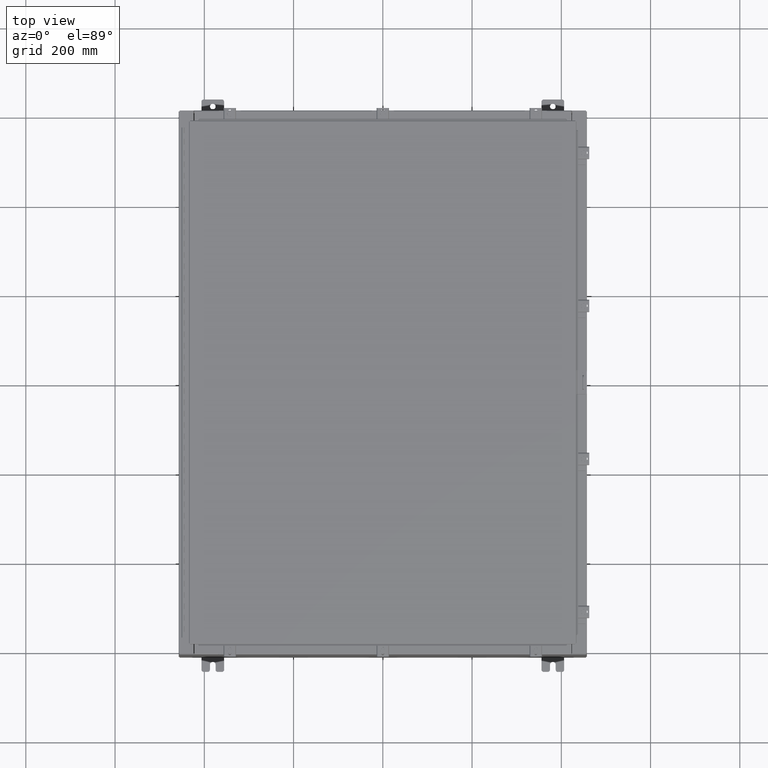
[diagram: clean part render]
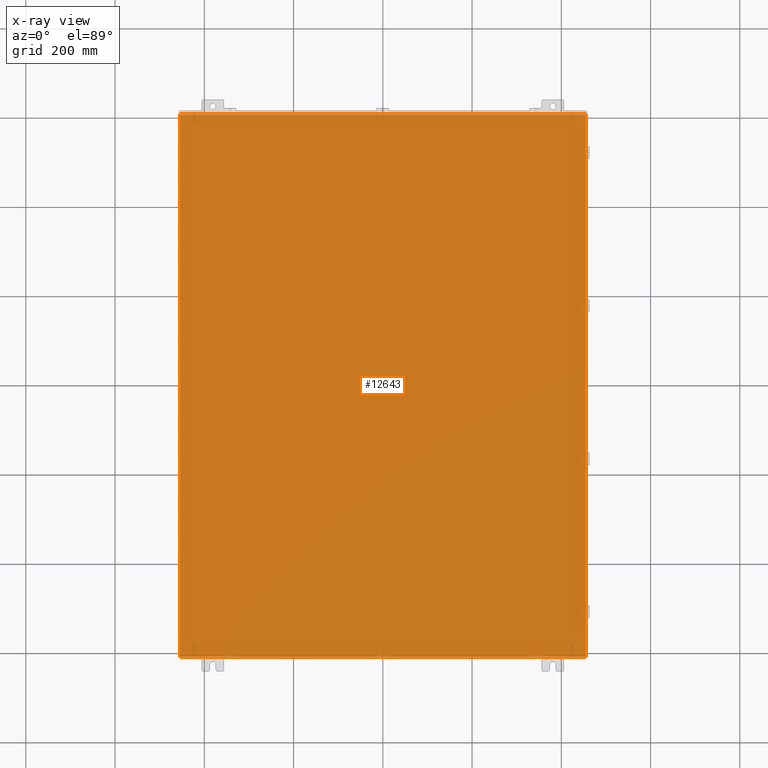
[diagram: x-ray — body ghosted, one internal face saturated and labeled with its STEP entity id]
A machine part, top view, then the same camera in x-ray: the body is ghosted and one INTERNAL B-rep face — a face not visible from any outside direction — is saturated and labeled: STEP entity #12643.
In plain terms, the highlighted planar face has unit normal (0, 0, -1).
Its self-contained STEP definition (entity closure, byte-faithful):
#303 = AXIS2_PLACEMENT_3D ( 'NONE', #30438, #22247, #51292 ) ;
#1031 = VECTOR ( 'NONE', #21137, 39.37007874015748100 ) ;
#3182 = CARTESIAN_POINT ( 'NONE',  ( -17.91230000000000500, -23.92529999999998900, 4.481938114605432000E-017 ) ) ;
#4646 = VECTOR ( 'NONE', #20668, 39.37007874015748100 ) ;
#5273 = VERTEX_POINT ( 'NONE', #34011 ) ;
#11595 = EDGE_CURVE ( 'NONE', #12930, #44428, #23324, .T. ) ;
#12555 = CARTESIAN_POINT ( 'NONE',  ( -17.91230000000000500, 23.92529999999998900, 4.481938114605432000E-017 ) ) ;
#12643 = ADVANCED_FACE ( 'NONE', ( #41400 ), #17986, .F. ) ;
#12837 = CARTESIAN_POINT ( 'NONE',  ( -18.00000000000000400, 23.92530000000000000, 0.0000000000000000000 ) ) ;
#12930 = VERTEX_POINT ( 'NONE', #15570 ) ;
#15570 = CARTESIAN_POINT ( 'NONE',  ( 17.91229999999999500, 23.92529999999998600, 3.103208580302999200E-015 ) ) ;
#15830 = LINE ( 'NONE', #45538, #4646 ) ;
#17877 = VECTOR ( 'NONE', #40840, 39.37007874015748100 ) ;
#17986 = PLANE ( 'NONE',  #303 ) ;
#18724 = EDGE_CURVE ( 'NONE', #5273, #44428, #19240, .T. ) ;
#19240 = LINE ( 'NONE', #3182, #17877 ) ;
#20668 = DIRECTION ( 'NONE',  ( 1.000000000000000000, 1.214154663850783700E-016, 0.0000000000000000000 ) ) ;
#21137 = DIRECTION ( 'NONE',  ( -1.000000000000000000, -0.0000000000000000000, -0.0000000000000000000 ) ) ;
#21703 = EDGE_CURVE ( 'NONE', #12930, #22061, #25007, .T. ) ;
#22061 = VERTEX_POINT ( 'NONE', #45972 ) ;
#22247 = DIRECTION ( 'NONE',  ( 0.0000000000000000000, 0.0000000000000000000, -1.000000000000000000 ) ) ;
#23324 = LINE ( 'NONE', #12837, #1031 ) ;
#25007 = LINE ( 'NONE', #42581, #26316 ) ;
#26316 = VECTOR ( 'NONE', #38416, 39.37007874015748100 ) ;
#27646 = ORIENTED_EDGE ( 'NONE', *, *, #18724, .F. ) ;
#30438 = CARTESIAN_POINT ( 'NONE',  ( 0.0000000000000000000, 0.0000000000000000000, 0.0000000000000000000 ) ) ;
#34011 = CARTESIAN_POINT ( 'NONE',  ( -17.91230000000000500, -23.92529999999998600, 4.481938114605432000E-017 ) ) ;
#35823 = ORIENTED_EDGE ( 'NONE', *, *, #46179, .T. ) ;
#38277 = ORIENTED_EDGE ( 'NONE', *, *, #11595, .T. ) ;
#38416 = DIRECTION ( 'NONE',  ( -0.0000000000000000000, -1.000000000000000000, -8.208677865577646300E-017 ) ) ;
#40431 = EDGE_LOOP ( 'NONE', ( #27646, #35823, #52834, #38277 ) ) ;
#40840 = DIRECTION ( 'NONE',  ( -0.0000000000000000000, 1.000000000000000000, -0.0000000000000000000 ) ) ;
#41400 = FACE_OUTER_BOUND ( 'NONE', #40431, .T. ) ;
#42581 = CARTESIAN_POINT ( 'NONE',  ( 17.91229999999999500, 23.92529999999998900, 3.103208580302999200E-015 ) ) ;
#44428 = VERTEX_POINT ( 'NONE', #12555 ) ;
#45538 = CARTESIAN_POINT ( 'NONE',  ( -18.00000000000000400, -23.92530000000000400, 0.0000000000000000000 ) ) ;
#45972 = CARTESIAN_POINT ( 'NONE',  ( 17.91229999999999500, -23.92529999999998900, -8.238229105893793900E-016 ) ) ;
#46179 = EDGE_CURVE ( 'NONE', #5273, #22061, #15830, .T. ) ;
#51292 = DIRECTION ( 'NONE',  ( -1.000000000000000000, 0.0000000000000000000, -0.0000000000000000000 ) ) ;
#52834 = ORIENTED_EDGE ( 'NONE', *, *, #21703, .F. ) ;